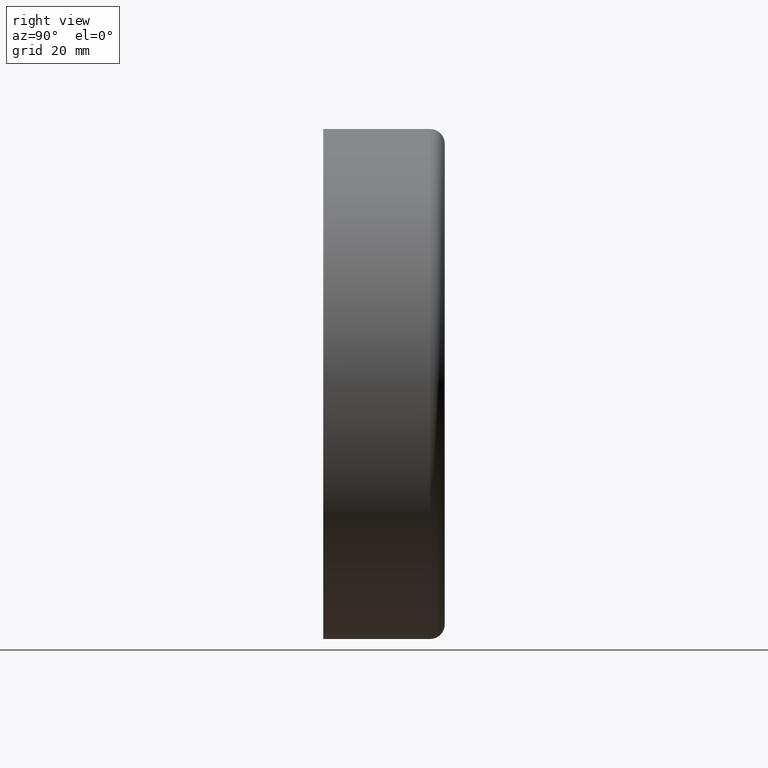
[diagram: clean part render]
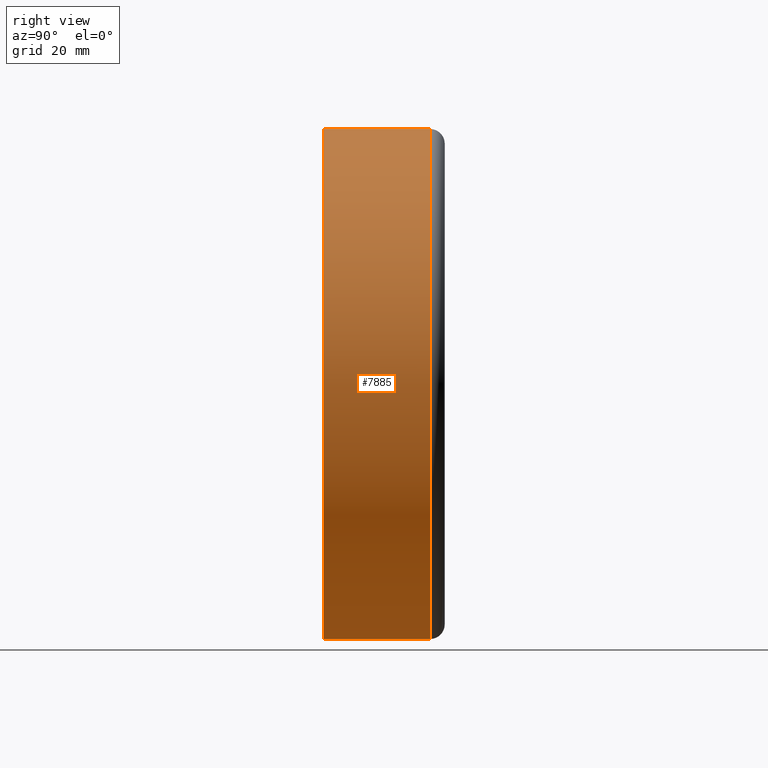
[diagram: same view with one face highlighted and labeled with its STEP entity id]
A machine part, right view. The second image highlights one B-rep face of the part: STEP entity #7885.
In plain terms, the highlighted cylindrical surface (partial cylindrical patch) has radius 52.5 mm, axis along (-0, -1, -0).
Its self-contained STEP definition (entity closure, byte-faithful):
#530 = EDGE_CURVE ( 'NONE', #11300, #10697, #1882, .T. ) ;
#1405 = ORIENTED_EDGE ( 'NONE', *, *, #530, .F. ) ;
#1882 = CIRCLE ( 'NONE', #11371, 52.50000000000000711 ) ;
#1970 = DIRECTION ( 'NONE',  ( -0.000000000000000000, -1.000000000000000000, -0.000000000000000000 ) ) ;
#1981 = DIRECTION ( 'NONE',  ( -0.000000000000000000, -1.000000000000000000, -0.000000000000000000 ) ) ;
#2203 = ORIENTED_EDGE ( 'NONE', *, *, #5159, .F. ) ;
#2820 = AXIS2_PLACEMENT_3D ( 'NONE', #10662, #1970, #3113 ) ;
#3113 = DIRECTION ( 'NONE',  ( 0.000000000000000000, 0.000000000000000000, -1.000000000000000000 ) ) ;
#3909 = DIRECTION ( 'NONE',  ( 0.000000000000000000, 0.000000000000000000, -1.000000000000000000 ) ) ;
#3922 = LINE ( 'NONE', #4645, #4905 ) ;
#4541 = DIRECTION ( 'NONE',  ( 0.000000000000000000, 0.000000000000000000, -1.000000000000000000 ) ) ;
#4645 = CARTESIAN_POINT ( 'NONE',  ( 0.000000000000000000, 0.000000000000000000, -52.50000000000000711 ) ) ;
#4841 = VERTEX_POINT ( 'NONE', #12808 ) ;
#4905 = VECTOR ( 'NONE', #6057, 1000.000000000000000 ) ;
#5159 = EDGE_CURVE ( 'NONE', #9065, #11300, #3922, .T. ) ;
#5166 = ORIENTED_EDGE ( 'NONE', *, *, #8350, .T. ) ;
#5435 = CARTESIAN_POINT ( 'NONE',  ( 0.000000000000000000, 0.000000000000000000, -52.50000000000000711 ) ) ;
#6057 = DIRECTION ( 'NONE',  ( -0.000000000000000000, -1.000000000000000000, -0.000000000000000000 ) ) ;
#6326 = DIRECTION ( 'NONE',  ( -0.000000000000000000, -1.000000000000000000, -0.000000000000000000 ) ) ;
#7025 = VECTOR ( 'NONE', #6326, 1000.000000000000000 ) ;
#7251 = CYLINDRICAL_SURFACE ( 'NONE', #7764, 52.50000000000000711 ) ;
#7764 = AXIS2_PLACEMENT_3D ( 'NONE', #15427, #11402, #3909 ) ;
#7885 = ADVANCED_FACE ( 'NONE', ( #16064 ), #7251, .T. ) ;
#8350 = EDGE_CURVE ( 'NONE', #9065, #4841, #15878, .T. ) ;
#8583 = LINE ( 'NONE', #14957, #7025 ) ;
#8818 = CARTESIAN_POINT ( 'NONE',  ( 0.000000000000000000, 22.00000000000000355, -52.50000000000000711 ) ) ;
#9065 = VERTEX_POINT ( 'NONE', #8818 ) ;
#10662 = CARTESIAN_POINT ( 'NONE',  ( 0.000000000000000000, 22.00000000000000355, 0.000000000000000000 ) ) ;
#10697 = VERTEX_POINT ( 'NONE', #13810 ) ;
#11058 = ORIENTED_EDGE ( 'NONE', *, *, #12389, .T. ) ;
#11300 = VERTEX_POINT ( 'NONE', #5435 ) ;
#11371 = AXIS2_PLACEMENT_3D ( 'NONE', #15793, #1981, #4541 ) ;
#11402 = DIRECTION ( 'NONE',  ( -0.000000000000000000, -1.000000000000000000, -0.000000000000000000 ) ) ;
#12389 = EDGE_CURVE ( 'NONE', #4841, #10697, #8583, .T. ) ;
#12808 = CARTESIAN_POINT ( 'NONE',  ( 6.429395695523604744E-15, 22.00000000000000355, 52.50000000000000711 ) ) ;
#13810 = CARTESIAN_POINT ( 'NONE',  ( 6.429395695523604744E-15, 0.000000000000000000, 52.50000000000000711 ) ) ;
#14957 = CARTESIAN_POINT ( 'NONE',  ( 6.429395695523604744E-15, 0.000000000000000000, 52.50000000000000711 ) ) ;
#15273 = EDGE_LOOP ( 'NONE', ( #5166, #11058, #1405, #2203 ) ) ;
#15427 = CARTESIAN_POINT ( 'NONE',  ( 0.000000000000000000, 0.000000000000000000, 0.000000000000000000 ) ) ;
#15793 = CARTESIAN_POINT ( 'NONE',  ( 0.000000000000000000, 0.000000000000000000, 0.000000000000000000 ) ) ;
#15878 = CIRCLE ( 'NONE', #2820, 52.50000000000000711 ) ;
#16064 = FACE_OUTER_BOUND ( 'NONE', #15273, .T. ) ;